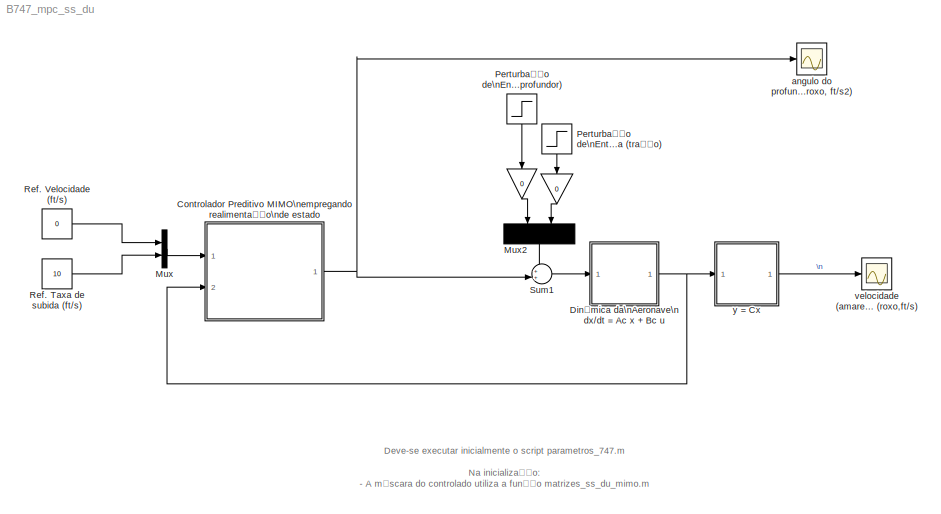
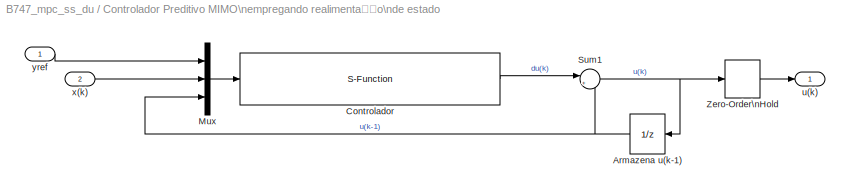
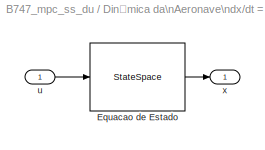
MODEL B747_mpc_ss_du
KIND model
BLOCK [Gain]  
  Gain = 0
  OutDataTypeStr = Inherit: Inherit via internal rule
  ParamDataTypeStr = Inherit: Inherit via internal rule
  SID = 50
  SaturateOnIntegerOverflow = off
BLOCK [Gain]   
  Gain = 0
  OutDataTypeStr = Inherit: Inherit via internal rule
  ParamDataTypeStr = Inherit: Inherit via internal rule
  SID = 51
  SaturateOnIntegerOverflow = off
BLOCK [SubSystem] Controlador Preditivo MIMO\nempregando realimentação\nde estado
  FunctionWithSeparateData = off
  MaskCallbackString = |||||||
  MaskEnableString = on,on,on,on,on,on,on,on
  MaskHideContents = off
  MaskIconFrame = on
  MaskIconOpaque = on
  MaskIconRotate = none
  MaskIconUnits = autoscale
  MaskInitialization = [KMPC,Phi] = matrizes_ss_du_mimo(A,B,C,N,M,mu,rho);\nn = size(A,1);\np = size(B,2);\nq = size(C,1);\n
  MaskPortRotate = default
  MaskPromptString = Pesos dos controles rho (p x 1)|Pesos das saídas mu (q x 1)|Horizonte de Predição (N)|Horizonte de Controle (M)|Matriz A (n x n)|Matriz B (n x p)|Matriz C (q x n)|Periodo de amostragem
  MaskStyleString = edit,edit,edit,edit,edit,edit,edit,edit
  MaskToolTipString = on,on,on,on,on,on,on,on
  MaskTunableValueString = on,on,on,on,on,on,on,on
  MaskValueString = [1;1]|[1;1]|10|5|A|B|C|T
  MaskVariables = rho=@1;mu=@2;N=@3;M=@4;A=@5;B=@6;C=@7;T=@8;
  MaskVisibilityString = on,on,on,on,on,on,on,on
  MinAlgLoopOccurrences = off
  Opaque = off
  Ports = [2, 1]
  PropExecContextOutsideSubsystem = off
  RTWSystemCode = Auto
  RequestExecContextInheritance = off
  SID = 1
BLOCK [UnitDelay] Controlador Preditivo MIMO\nempregando realimentação\nde estado/Armazena u(k-1)
  SID = 4
  SampleTime = T
BLOCK [S-Function] Controlador Preditivo MIMO\nempregando realimentação\nde estado/Controlador
  EnableBusSupport = off
  FunctionName = mpc_ss_du_mimo
  Parameters = KMPC,Phi,p,q,n,N,T
  Ports = [1, 1]
  SID = 5
BLOCK [Mux] Controlador Preditivo MIMO\nempregando realimentação\nde estado/Mux
  DisplayOption = bar
  Inputs = 3
  Ports = [3, 1]
  SID = 6
BLOCK [Sum] Controlador Preditivo MIMO\nempregando realimentação\nde estado/Sum1
  IconShape = round
  Inputs = |++
  Ports = [2, 1]
  SID = 7
BLOCK [ZeroOrderHold] Controlador Preditivo MIMO\nempregando realimentação\nde estado/Zero-Order\nHold
  SID = 8
  SampleTime = T
BLOCK [Outport] Controlador Preditivo MIMO\nempregando realimentação\nde estado/u(k)
  IconDisplay = Port number
  SID = 9
BLOCK [Inport] Controlador Preditivo MIMO\nempregando realimentação\nde estado/x(k)
  IconDisplay = Port number
  Port = 2
  SID = 3
BLOCK [Inport] Controlador Preditivo MIMO\nempregando realimentação\nde estado/yref
  IconDisplay = Port number
  SID = 2
BLOCK [SubSystem] Dinâmica da\nAeronave\ndx//dt = Ac x + Bc u
  FunctionWithSeparateData = off
  MaskHideContents = off
  MinAlgLoopOccurrences = off
  Opaque = off
  Ports = [1, 1]
  PropExecContextOutsideSubsystem = off
  RTWSystemCode = Auto
  RequestExecContextInheritance = off
  SID = 11
BLOCK [StateSpace] Dinâmica da\nAeronave\ndx//dt = Ac x + Bc u/Equacao de Estado
  A = Ac
  B = Bc
  C = eye(size(A,1),size(A,1))
  D = zeros(size(A,1),size(B,2))
  SID = 13
  X0 = zeros(size(A,1),1)
BLOCK [Inport] Dinâmica da\nAeronave\ndx//dt = Ac x + Bc u/u
  IconDisplay = Port number
  SID = 12
BLOCK [Outport] Dinâmica da\nAeronave\ndx//dt = Ac x + Bc u/x
  IconDisplay = Port number
  SID = 14
BLOCK [Mux] Mux
  DisplayOption = bar
  Inputs = 2
  Ports = [2, 1]
  SID = 15
BLOCK [Mux] Mux2
  DisplayOption = bar
  Inputs = 2
  Ports = [2, 1]
  SID = 17
BLOCK [Step] Perturbação de\nEntrada (profundor)
  After = 2
  SID = 32
  SampleTime = 0
  Time = 4
BLOCK [Step] Perturbação de\nEntrada (tração)
  After = 2
  SID = 33
  SampleTime = 0
  Time = 4
BLOCK [Constant] Ref. Taxa de subida (ft//s)
  SID = 36
  Value = 10
BLOCK [Constant] Ref. Velocidade (ft//s)
  SID = 37
  Value = 0
BLOCK [Sum] Sum1
  IconShape = round
  InputSameDT = off
  Inputs = ++|
  OutDataTypeStr = Inherit: Inherit via internal rule
  Ports = [2, 1]
  SID = 38
BLOCK [Scope] angulo do profundor (amarelo, crad)\ntração específica (roxo, ft//s2)
  Floating = off
  LimitDataPoints = off
  NumInputPorts = 1
  Ports = [1]
  SID = 40
  SaveName = y1
  ShowLegends = off
  TimeRange = 10
  YMax = 3
  YMin = -6
  ZoomMode = yonly
BLOCK [Scope] velocidade (amarelo,ft//s),\ntaxa de subida (roxo,ft//s)
  Floating = off
  LimitDataPoints = off
  NumInputPorts = 1
  Ports = [1]
  SID = 43
  SaveName = y
  ShowLegends = off
  TimeRange = 10
  YMax = 12
  YMin = -2
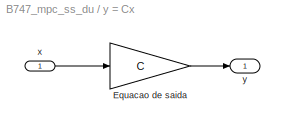
BLOCK [SubSystem] y = Cx
  FunctionWithSeparateData = off
  MaskHideContents = off
  MinAlgLoopOccurrences = off
  Opaque = off
  Ports = [1, 1]
  PropExecContextOutsideSubsystem = off
  RTWSystemCode = Auto
  RequestExecContextInheritance = off
  SID = 44
BLOCK [Gain] y = Cx/Equacao de saida
  Gain = C
  Multiplication = Matrix(K*u)
  SID = 46
BLOCK [Inport] y = Cx/x
  IconDisplay = Port number
  SID = 45
BLOCK [Outport] y = Cx/y
  IconDisplay = Port number
  SID = 47
ANNOTATION (root): Deve-se executar inicialmente o script parametros_747.m\n\nNa inicialização:\n- A máscara do controlado utiliza a função matrizes_ss_du_mimo.m
LINE   :1 -> Mux2:1
LINE  :1 -> Mux2:2
NET Controlador Preditivo MIMO\nempregando realimentação\nde estado/Armazena u(k-1):1 -> Controlador Preditivo MIMO\nempregando realimentação\nde estado/Mux:3, Controlador Preditivo MIMO\nempregando realimentação\nde estado/Sum1:2
LINE Controlador Preditivo MIMO\nempregando realimentação\nde estado/Controlador:1 -> Controlador Preditivo MIMO\nempregando realimentação\nde estado/Sum1:1
LINE Controlador Preditivo MIMO\nempregando realimentação\nde estado/Mux:1 -> Controlador Preditivo MIMO\nempregando realimentação\nde estado/Controlador:1
NET Controlador Preditivo MIMO\nempregando realimentação\nde estado/Sum1:1 -> Controlador Preditivo MIMO\nempregando realimentação\nde estado/Armazena u(k-1):1, Controlador Preditivo MIMO\nempregando realimentação\nde estado/Zero-Order\nHold:1
LINE Controlador Preditivo MIMO\nempregando realimentação\nde estado/Zero-Order\nHold:1 -> Controlador Preditivo MIMO\nempregando realimentação\nde estado/u(k):1
LINE Controlador Preditivo MIMO\nempregando realimentação\nde estado/x(k):1 -> Controlador Preditivo MIMO\nempregando realimentação\nde estado/Mux:2
LINE Controlador Preditivo MIMO\nempregando realimentação\nde estado/yref:1 -> Controlador Preditivo MIMO\nempregando realimentação\nde estado/Mux:1
NET Controlador Preditivo MIMO\nempregando realimentação\nde estado:1 -> Sum1:2, angulo do profundor (amarelo, crad)\ntração específica (roxo, ft//s2):1
LINE Dinâmica da\nAeronave\ndx//dt = Ac x + Bc u/Equacao de Estado:1 -> Dinâmica da\nAeronave\ndx//dt = Ac x + Bc u/x:1
LINE Dinâmica da\nAeronave\ndx//dt = Ac x + Bc u/u:1 -> Dinâmica da\nAeronave\ndx//dt = Ac x + Bc u/Equacao de Estado:1
NET Dinâmica da\nAeronave\ndx//dt = Ac x + Bc u:1 -> Controlador Preditivo MIMO\nempregando realimentação\nde estado:2, y = Cx:1
LINE Mux2:1 -> Sum1:1
LINE Mux:1 -> Controlador Preditivo MIMO\nempregando realimentação\nde estado:1
LINE Perturbação de\nEntrada (profundor):1 ->   :1
LINE Perturbação de\nEntrada (tração):1 ->  :1
LINE Ref. Taxa de subida (ft//s):1 -> Mux:2
LINE Ref. Velocidade (ft//s):1 -> Mux:1
LINE Sum1:1 -> Dinâmica da\nAeronave\ndx//dt = Ac x + Bc u:1
LINE y = Cx/Equacao de saida:1 -> y = Cx/y:1
LINE y = Cx/x:1 -> y = Cx/Equacao de saida:1
LINE y = Cx:1 -> velocidade (amarelo,ft//s),\ntaxa de subida (roxo,ft//s):1
note: NET lines group one-source signal fan-out (src -> all destinations, sorted); 1:1 wires keep LINE
